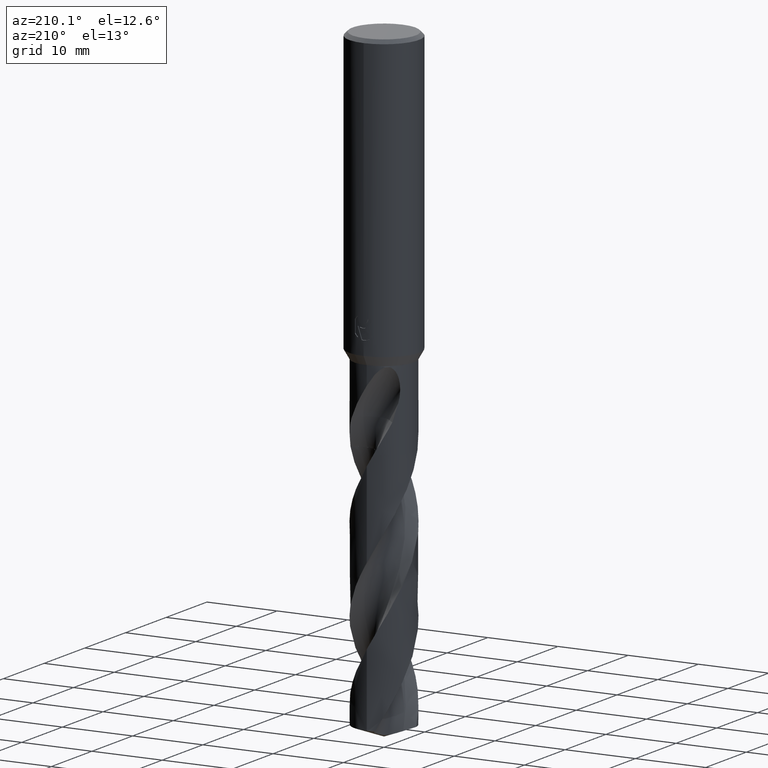
[diagram: clean part render]
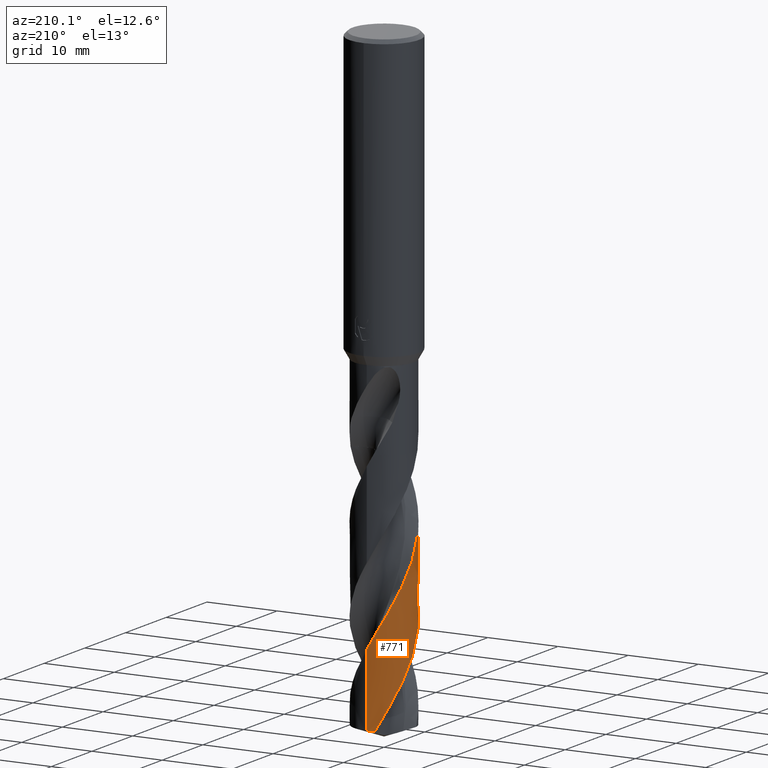
[diagram: same view with one face highlighted and labeled with its STEP entity id]
A machine part, auxiliary view. The second image highlights one B-rep face of the part: STEP entity #771.
In plain terms, the highlighted conical surface has half-angle 0 deg.
Its self-contained STEP definition (entity closure, byte-faithful):
#373=EDGE_CURVE('',#751,#503,#903,.T.);
#493=EDGE_CURVE('',#549,#761,#1034,.T.);
#503=VERTEX_POINT('',#1044);
#527=EDGE_CURVE('',#673,#549,#1069,.T.);
#531=EDGE_CURVE('',#751,#673,#1073,.T.);
#549=VERTEX_POINT('',#1091);
#633=EDGE_CURVE('',#761,#503,#1182,.T.);
#673=VERTEX_POINT('',#1226);
#751=VERTEX_POINT('',#1313);
#761=VERTEX_POINT('',#1325);
#771=ADVANCED_FACE('',(#1336),#1337,.T.);
#903=CIRCLE('',#2570,4.25);
#1034=B_SPLINE_CURVE_WITH_KNOTS('',3,(#4025,#4026,#4027,#4028,#4029,#4030,#4031,#4032,#4033,#4034,#4035,#4036,#4037,#4038,#4039,#4040,#4041,#4042,#4043,#4044,#4045,#4046,#4047,#4048,#4049,#4050,#4051,#4052,#4053,#4054,#4055,#4056,#4057,#4058,#4059,#4060,#4061,#4062,#4063,#4064,#4065,#4066,#4067,#4068,#4069,#4070,#4071,#4072,#4073,#4074,#4075,#4076,#4077,#4078,#4079,#4080,#4081,#4082,#4083,#4084,#4085,#4086),.UNSPECIFIED.,.F.,.F.,(4,2,2,2,2,2,2,2,2,2,2,2,2,2,2,2,2,2,2,2,2,2,2,2,2,2,2,2,2,2,4),(0.0,1.67049817114989,3.38909740967659,5.02199569517191,6.66877494747498,7.41883072466974,9.05127733315748,10.6906580615677,12.3321711970099,13.1450461110828,14.7739502681546,16.4185702123032,18.0564791911787,19.6835010827628,21.3286989649663,21.7240429341511,24.4785002536053,24.5219904940877,27.0246944861772,27.8359871434985,29.3739383333129,30.0548469105163,30.686530396959,33.0600836135447,33.5083441722421,35.1963822824349,35.8317671841437,36.9411733425494,38.6094560863851,39.4442832089786,40.2795976236325),.UNSPECIFIED.);
#1044=CARTESIAN_POINT('',(-5.20461850545613E-016,4.25,-87.4531265043686));
#1069=LINE('',#4764,#4765);
#1073=B_SPLINE_CURVE_WITH_KNOTS('',3,(#4800,#4801,#4802,#4803,#4804,#4805,#4806,#4807,#4808,#4809,#4810,#4811,#4812,#4813,#4814,#4815,#4816,#4817,#4818,#4819,#4820,#4821,#4822,#4823,#4824,#4825,#4826,#4827,#4828,#4829,#4830,#4831,#4832,#4833,#4834,#4835,#4836,#4837,#4838,#4839,#4840,#4841,#4842,#4843,#4844,#4845,#4846,#4847,#4848,#4849,#4850,#4851,#4852,#4853,#4854,#4855,#4856,#4857,#4858,#4859),.UNSPECIFIED.,.F.,.F.,(4,2,2,2,2,2,2,2,2,2,2,2,2,2,2,2,2,2,2,2,2,2,2,2,2,2,2,2,2,4),(0.0,2.29751554083711,3.85419746689243,4.21568735410119,5.77898189527141,7.88889528178311,9.26072049399772,10.3614421613478,11.6755371816784,12.3141242453152,13.6339079769723,15.3855285037657,16.3615986594724,18.5282114127292,18.931263613634,21.2017948752059,22.2120860155474,24.593745108157,24.7835131242692,27.0979653894139,28.1412221380216,29.4965104685312,31.9259406108355,33.2056314217341,34.1098931357135,35.4881716256427,36.1111966361216,37.1986376450806,38.8373059644024,40.4686052978695),.UNSPECIFIED.);
#1091=CARTESIAN_POINT('',(-1.30624553814254E-014,-4.24990427903234,-54.0913765494785));
#1182=LINE('',#5341,#5342);
#1226=CARTESIAN_POINT('',(-2.26836955454682E-010,-4.24993918034887,-66.2555765590413));
#1313=CARTESIAN_POINT('',(-1.07965947315376,4.11057604503667,-87.4531265043686));
#1325=CARTESIAN_POINT('',(-1.9356065142972E-014,4.24997050720049,-77.1739637851389));
#1336=FACE_OUTER_BOUND('',#7523,.T.);
#1337=CONICAL_SURFACE('',#7524,4.24995,2.86918305555624E-006);
#2570=AXIS2_PLACEMENT_3D('',#8440,#8441,#8442);
#4025=CARTESIAN_POINT('',(0.854380163967012,-4.16313399246552,-52.6038463244049));
#4026=CARTESIAN_POINT('',(0.581009482690776,-4.21923796690424,-53.0857005522295));
#4027=CARTESIAN_POINT('',(0.303001632948318,-4.24823073402932,-53.56702067867));
#4028=CARTESIAN_POINT('',(-0.2621485322087,-4.25148322822553,-54.5450382501348));
#4029=CARTESIAN_POINT('',(-0.548289650914699,-4.22414328957629,-55.0387670938332));
#4030=CARTESIAN_POINT('',(-1.09697557472159,-4.11493292325026,-56.005511501717));
#4031=CARTESIAN_POINT('',(-1.35844242159467,-4.03615331609612,-56.4758322339894));
#4032=CARTESIAN_POINT('',(-1.86459658381694,-3.82889908111574,-57.4221126764593));
#4033=CARTESIAN_POINT('',(-2.10819942877756,-3.70038721221964,-57.8958574895982));
#4034=CARTESIAN_POINT('',(-2.44238189128811,-3.48026553806209,-58.5871226098985));
#4035=CARTESIAN_POINT('',(-2.5438141310253,-3.40682635733157,-58.803311996356));
#4036=CARTESIAN_POINT('',(-2.85513339197692,-3.15977631233125,-59.4906873359605));
#4037=CARTESIAN_POINT('',(-3.05175495907712,-2.9703317830468,-59.9609106164045));
#4038=CARTESIAN_POINT('',(-3.40685389171404,-2.55540230253981,-60.9047171756705));
#4039=CARTESIAN_POINT('',(-3.56421673238695,-2.33087795096311,-61.3762400211451));
#4040=CARTESIAN_POINT('',(-3.83370663220655,-1.8546007979099,-62.3229297597792));
#4041=CARTESIAN_POINT('',(-3.945260865559,-1.60372122256284,-62.7954443851014));
#4042=CARTESIAN_POINT('',(-4.07482129701412,-1.21497531989426,-63.5034200412028));
#4043=CARTESIAN_POINT('',(-4.11152289825934,-1.08429498645755,-63.7376273620249));
#4044=CARTESIAN_POINT('',(-4.2027962956608,-0.68724524507252,-64.4421871326094));
#4045=CARTESIAN_POINT('',(-4.23815383467101,-0.417064115249384,-64.9115770837376));
#4046=CARTESIAN_POINT('',(-4.25683988513412,0.129078545432308,-65.8560444775027));
#4047=CARTESIAN_POINT('',(-4.23961608343561,0.403630669995338,-66.3289338428294));
#4048=CARTESIAN_POINT('',(-4.15270517580821,0.944305026988066,-67.2762427923346));
#4049=CARTESIAN_POINT('',(-4.08340084837775,1.20940294119238,-67.7479276170341));
#4050=CARTESIAN_POINT('',(-3.89533605174857,1.72110630717848,-68.6898903379583));
#4051=CARTESIAN_POINT('',(-3.77741995380973,1.96642674301076,-69.1582858707585));
#4052=CARTESIAN_POINT('',(-3.49498904914574,2.43361164989216,-70.1026382256169));
#4053=CARTESIAN_POINT('',(-3.33050499767015,2.65429815074038,-70.5761261468226));
#4054=CARTESIAN_POINT('',(-3.10139302213033,2.90651377342439,-71.1648243378298));
#4055=CARTESIAN_POINT('',(-3.05588215774018,2.9543265113718,-71.2788275446431));
#4056=CARTESIAN_POINT('',(-2.68459701145522,3.32663287649835,-72.1877450493439));
#4057=CARTESIAN_POINT('',(-2.30907112690248,3.59749368317342,-72.9784256404118));
#4058=CARTESIAN_POINT('',(-1.89094072783483,3.80612172724505,-73.7858164283296));
#4059=CARTESIAN_POINT('',(-1.88443297881793,3.80934798858063,-73.7983666425864));
#4060=CARTESIAN_POINT('',(-1.50293891631828,3.99725940442317,-74.5332144073057));
#4061=CARTESIAN_POINT('',(-1.10261387716006,4.12568568542561,-75.2532726821138));
#4062=CARTESIAN_POINT('',(-0.556279882718921,4.2155843095791,-76.2098745264572));
#4063=CARTESIAN_POINT('',(-0.421611408554271,4.23117281414287,-76.4438057969786));
#4064=CARTESIAN_POINT('',(-0.0302692392734867,4.25761288104165,-77.1221467450311));
#4065=CARTESIAN_POINT('',(0.227039984388521,4.25167169675327,-77.5657085742409));
#4066=CARTESIAN_POINT('',(0.595293301630357,4.20961251886209,-78.2063400733142));
#4067=CARTESIAN_POINT('',(0.707753812298866,4.19217235099272,-78.4028110864329));
#4068=CARTESIAN_POINT('',(0.922967612630291,4.14988680104643,-78.7817428033078));
#4069=CARTESIAN_POINT('',(1.02570630238814,4.12569360586196,-78.963967549298));
#4070=CARTESIAN_POINT('',(1.5095962398972,3.99256187158367,-79.8318137392467));
#4071=CARTESIAN_POINT('',(1.87537147728037,3.83440603933779,-80.5144924621282));
#4072=CARTESIAN_POINT('',(2.27792658424965,3.58873425278888,-81.3292377579129));
#4073=CARTESIAN_POINT('',(2.34081133780077,3.54803658699898,-81.4585948454964));
#4074=CARTESIAN_POINT('',(2.63519047762649,3.34629046148749,-82.0755852137778));
#4075=CARTESIAN_POINT('',(2.85139072475854,3.16409506078171,-82.5626324872719));
#4076=CARTESIAN_POINT('',(3.12192932657825,2.88569306361155,-83.2337147182506));
#4077=CARTESIAN_POINT('',(3.19304744203004,2.80680023703317,-83.4171385295375));
#4078=CARTESIAN_POINT('',(3.38005231339382,2.58302976697894,-83.9210316625709));
#4079=CARTESIAN_POINT('',(3.48947987511362,2.43316462549859,-84.2410844783395));
#4080=CARTESIAN_POINT('',(3.73802273734469,2.04139077179466,-85.0434643122636));
#4081=CARTESIAN_POINT('',(3.8638608157794,1.79187568263809,-85.5241405935779));
#4082=CARTESIAN_POINT('',(4.01468002393879,1.40153250221451,-86.2469832905799));
#4083=CARTESIAN_POINT('',(4.05850376024139,1.26903990215861,-86.4876597142356));
#4084=CARTESIAN_POINT('',(4.13297370822179,1.00023889197096,-86.9702447067774));
#4085=CARTESIAN_POINT('',(4.16356390290923,0.864096506823398,-87.211694083497));
#4086=CARTESIAN_POINT('',(4.18740231547273,0.726747444697009,-87.4531265043687));
#4764=CARTESIAN_POINT('',(5.20447427171638E-016,-4.24995,-70.0265632521843));
#4765=VECTOR('',#8585,1.0);
#4800=CARTESIAN_POINT('',(-1.07965947315377,4.11057604503668,-87.4531265043686));
#4801=CARTESIAN_POINT('',(-1.45174821540029,4.01284346306116,-86.7909279395516));
#4802=CARTESIAN_POINT('',(-1.80789720749949,3.86535591203155,-86.1239222625401));
#4803=CARTESIAN_POINT('',(-2.36366395008136,3.54161228869324,-85.0127868188305));
#4804=CARTESIAN_POINT('',(-2.57544411727605,3.39068036879842,-84.5668206989185));
#4805=CARTESIAN_POINT('',(-2.81757089530179,3.1823472369855,-84.0135000528124));
#4806=CARTESIAN_POINT('',(-2.86229608888944,3.14217858294309,-83.9091381160204));
#4807=CARTESIAN_POINT('',(-3.09578064614456,2.92336897527639,-83.3544111718478));
#4808=CARTESIAN_POINT('',(-3.26902914231356,2.72834477334871,-82.9066537715575));
#4809=CARTESIAN_POINT('',(-3.63215237000434,2.23467001343022,-81.8495888216711));
#4810=CARTESIAN_POINT('',(-3.80452796743253,1.92654388259064,-81.2404306722604));
#4811=CARTESIAN_POINT('',(-4.02309375105071,1.38899762391659,-80.2380761221371));
#4812=CARTESIAN_POINT('',(-4.09196518779923,1.17063348187545,-79.8450552863642));
#4813=CARTESIAN_POINT('',(-4.18384176020368,0.769027044378222,-79.1332618362986));
#4814=CARTESIAN_POINT('',(-4.21306661354714,0.58806488465601,-78.8152596751534));
#4815=CARTESIAN_POINT('',(-4.25139941371249,0.188591878440612,-78.1204006291273));
#4816=CARTESIAN_POINT('',(-4.25550120577501,-0.0303512885441031,-77.7439982017199));
#4817=CARTESIAN_POINT('',(-4.23644004643717,-0.355173567840284,-77.1827168164323));
#4818=CARTESIAN_POINT('',(-4.2262242779864,-0.461041046334476,-76.9993095682784));
#4819=CARTESIAN_POINT('',(-4.18281013718088,-0.78392267514231,-76.4360805923125));
#4820=CARTESIAN_POINT('',(-4.13677300569536,-0.998785679684207,-76.0549719639135));
#4821=CARTESIAN_POINT('',(-3.99132167475004,-1.48880084290261,-75.1715773742618));
#4822=CARTESIAN_POINT('',(-3.8798706205041,-1.75886223253623,-74.6716062381372));
#4823=CARTESIAN_POINT('',(-3.66483428129095,-2.15812227417959,-73.8869749455761));
#4824=CARTESIAN_POINT('',(-3.57986507885418,-2.29631561220489,-73.6052834727034));
#4825=CARTESIAN_POINT('',(-3.28116618419685,-2.72504255547687,-72.7012042206637));
#4826=CARTESIAN_POINT('',(-3.03867675303061,-2.99298621714471,-72.0852862476541));
#4827=CARTESIAN_POINT('',(-2.71472276120749,-3.27060629479068,-71.345994543298));
#4828=CARTESIAN_POINT('',(-2.66297459449134,-3.31287341635119,-71.2299161231605));
#4829=CARTESIAN_POINT('',(-2.31339401898704,-3.58494317596426,-70.4615692158892));
#4830=CARTESIAN_POINT('',(-1.98698078340672,-3.77571007243621,-69.8175331043567));
#4831=CARTESIAN_POINT('',(-1.48459780194779,-3.98574113438408,-68.8758575572015));
#4832=CARTESIAN_POINT('',(-1.32642807824763,-4.04112463553076,-68.5848806412349));
#4833=CARTESIAN_POINT('',(-0.785581616881337,-4.19533262683817,-67.6114852597272));
#4834=CARTESIAN_POINT('',(-0.392948727612279,-4.25003749068145,-66.9374408138197));
#4835=CARTESIAN_POINT('',(0.0324333921962908,-4.24993120390221,-66.1992965358443));
#4836=CARTESIAN_POINT('',(0.0637826233712689,-4.24957629549918,-66.1448341183356));
#4837=CARTESIAN_POINT('',(0.478169798913058,-4.24029099913847,-65.4256162903238));
#4838=CARTESIAN_POINT('',(0.858522584035596,-4.17998039918659,-64.769837514228));
#4839=CARTESIAN_POINT('',(1.39173566542239,-4.01932010997907,-63.8068643109026));
#4840=CARTESIAN_POINT('',(1.55397640204136,-3.95941352993606,-63.5066085460996));
#4841=CARTESIAN_POINT('',(1.91772710060047,-3.79929631128532,-62.8188287603556));
#4842=CARTESIAN_POINT('',(2.11597537155528,-3.69258541751421,-62.432068620035));
#4843=CARTESIAN_POINT('',(2.6439782510702,-3.3517145991774,-61.3477754608103));
#4844=CARTESIAN_POINT('',(2.94991587841438,-3.08586603229305,-60.6502469780861));
#4845=CARTESIAN_POINT('',(3.35289629641613,-2.62012538672386,-59.5877096024371));
#4846=CARTESIAN_POINT('',(3.47947752291628,-2.44947530650932,-59.2225141427343));
#4847=CARTESIAN_POINT('',(3.67262452599703,-2.14383664775585,-58.5962776478117));
#4848=CARTESIAN_POINT('',(3.74590052248074,-2.01308628725726,-58.3359577221301));
#4849=CARTESIAN_POINT('',(3.91325037763994,-1.67347269296924,-57.680996966137));
#4850=CARTESIAN_POINT('',(3.99768900317102,-1.46038708950146,-57.2875133853822));
#4851=CARTESIAN_POINT('',(4.09484536626004,-1.14224158241254,-56.7137566860723));
#4852=CARTESIAN_POINT('',(4.1214277499531,-1.0422361723188,-56.5352648930405));
#4853=CARTESIAN_POINT('',(4.1842700013343,-0.765601633192505,-56.0445263226787));
#4854=CARTESIAN_POINT('',(4.21298164375211,-0.587436705427127,-55.7316129268938));
#4855=CARTESIAN_POINT('',(4.25639154098854,-0.137100435596134,-54.9491790742406));
#4856=CARTESIAN_POINT('',(4.2564343747931,0.135342633488371,-54.4819698607664));
#4857=CARTESIAN_POINT('',(4.20464187866408,0.675168323802348,-53.5441748432883));
#4858=CARTESIAN_POINT('',(4.15317863443514,0.941553726202778,-53.072699199337));
#4859=CARTESIAN_POINT('',(4.07636418007444,1.20204209544953,-52.6048314383729));
#5341=CARTESIAN_POINT('',(-5.20455727513844E-016,4.24995,-70.0265632521843));
#5342=VECTOR('',#8684,1.0);
#7523=EDGE_LOOP('',(#8834,#8835,#8836,#8837,#8838));
#7524=AXIS2_PLACEMENT_3D('',#8839,#8840,#8841);
#8440=CARTESIAN_POINT('',(0.0,0.0,-87.4531265043686));
#8441=DIRECTION('',(0.0,0.0,-1.0));
#8442=DIRECTION('',(0.0,1.0,0.0));
#8585=DIRECTION('',(-3.51361980010885E-022,2.8691830555523E-006,0.999999999995884));
#8684=DIRECTION('',(-3.51361980010885E-022,2.8691830555523E-006,-0.999999999995884));
#8834=ORIENTED_EDGE('',*,*,#633,.T.);
#8835=ORIENTED_EDGE('',*,*,#373,.F.);
#8836=ORIENTED_EDGE('',*,*,#531,.T.);
#8837=ORIENTED_EDGE('',*,*,#527,.T.);
#8838=ORIENTED_EDGE('',*,*,#493,.T.);
#8839=CARTESIAN_POINT('',(0.0,0.0,-70.0265632521843));
#8840=DIRECTION('',(0.0,-0.0,-1.0));
#8841=DIRECTION('',(0.0,1.0,0.0));